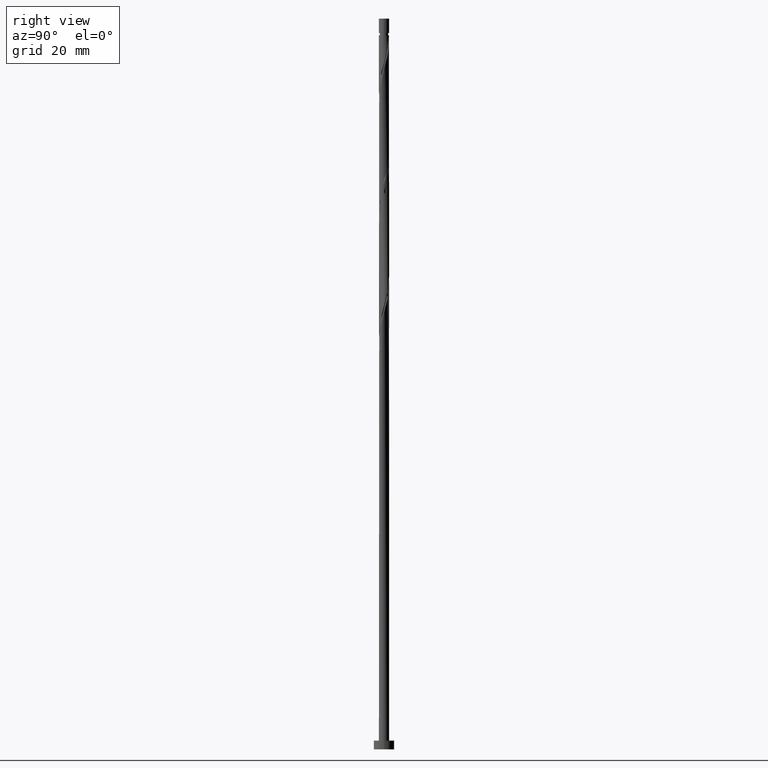
[diagram: clean part render]
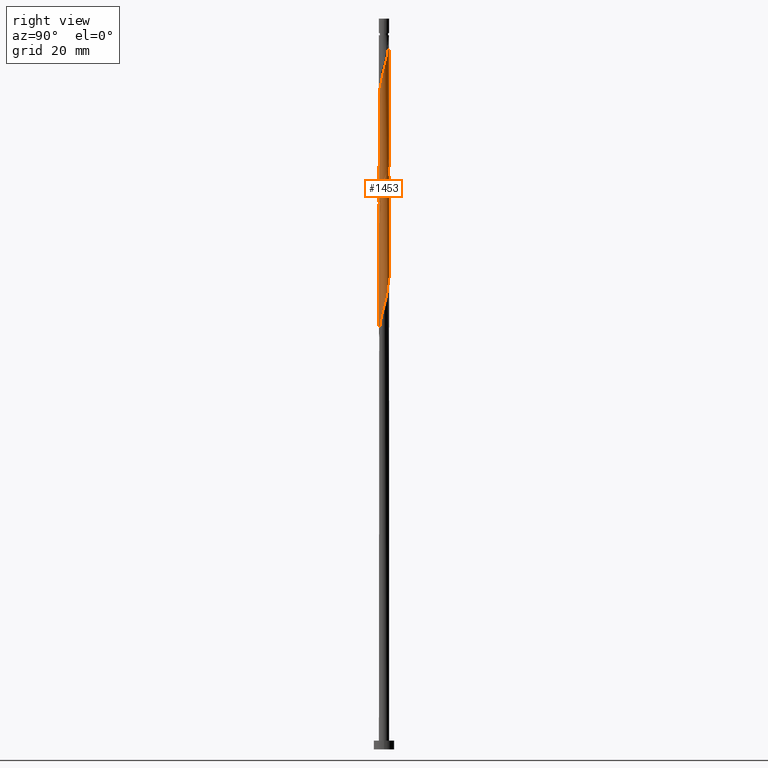
[diagram: same view with one face highlighted and labeled with its STEP entity id]
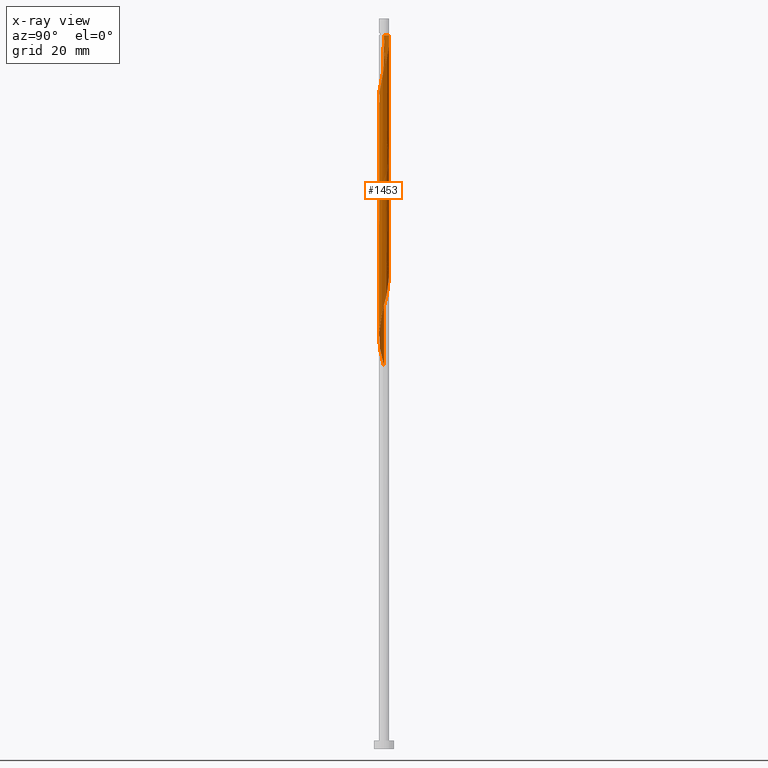
[diagram: x-ray of the same camera — body ghosted, the highlighted face saturated]
A machine part, right view. The second image highlights one B-rep face of the part: STEP entity #1453.
The next image is the same camera in x-ray: the body ghosted, the highlighted face saturated — about 0% of this face is hidden behind the body in this view.
In plain terms, the highlighted cylindrical surface (bore or boss wall) has radius 1.75 mm, axis along (-0, -0, -1).
Its self-contained STEP definition (entity closure, byte-faithful):
#9 = CARTESIAN_POINT ( 'NONE',  ( -1.692736842704839484, -0.4922330052974227543, 132.9356916761042271 ) ) ;
#24 = CARTESIAN_POINT ( 'NONE',  ( -1.749999999999999778, 0.06960297808934917674, 214.1276477645683372 ) ) ;
#27 = CARTESIAN_POINT ( 'NONE',  ( 1.749999999999999556, 1.690021054261355224E-15, 193.5584853468679398 ) ) ;
#40 = ORIENTED_EDGE ( 'NONE', *, *, #769, .F. ) ;
#56 = CARTESIAN_POINT ( 'NONE',  ( -1.366683947453748882, -1.113474893262856202, 216.2690250094376267 ) ) ;
#60 = CARTESIAN_POINT ( 'NONE',  ( -0.6926809520482244409, 1.621062752895163994, 206.6536403940529851 ) ) ;
#70 = CARTESIAN_POINT ( 'NONE',  ( -0.8765897820436293619, 1.514625483087057578, 207.4549224453350860 ) ) ;
#72 = CARTESIAN_POINT ( 'NONE',  ( 0.1400069017611417777, 1.757284671763150952, 161.7818455222580667 ) ) ;
#74 = CARTESIAN_POINT ( 'NONE',  ( -1.750000000000002220, -0.06960297808934570729, 212.0001458440505075 ) ) ;
#81 = CARTESIAN_POINT ( 'NONE',  ( 1.480063263495108306, -0.9337626765148681063, 148.1600506504632619 ) ) ;
#90 = CARTESIAN_POINT ( 'NONE',  ( -0.1400069017611421385, -1.757284671763150952, 182.6151788555914379 ) ) ;
#97 = AXIS2_PLACEMENT_3D ( 'NONE', #768, #1046, #907 ) ;
#100 = CARTESIAN_POINT ( 'NONE',  ( -0.2846071929171876680, 1.739727017636468087, 163.3844096248222115 ) ) ;
#107 = CARTESIAN_POINT ( 'NONE',  ( -1.397920935722297919, -1.052766383139818407, 135.3395378299503875 ) ) ;
#109 = DIRECTION ( 'NONE',  ( -1.000000000000000000, 0.000000000000000000, 0.000000000000000000 ) ) ;
#111 = CARTESIAN_POINT ( 'NONE',  ( -0.4886440724827061377, 1.680394885265816152, 205.8523583427709696 ) ) ;
#113 = CARTESIAN_POINT ( 'NONE',  ( -1.105356407627419824, -1.356719282724692999, 136.9421019325145323 ) ) ;
#116 = CARTESIAN_POINT ( 'NONE',  ( 1.213591279746393026, 1.260831553270904237, 237.9036403940529851 ) ) ;
#141 = ORIENTED_EDGE ( 'NONE', *, *, #904, .T. ) ;
#159 = VERTEX_POINT ( 'NONE', #1321 ) ;
#167 =( BOUNDED_CURVE ( )  B_SPLINE_CURVE ( 2, ( #27, #463, #751, #1153, #1137, #369, #892, #222, #1430, #1549, #1391, #203, #1127, #623, #1411, #90, #607, #725, #1657, #1297, #242, #1287, #1119, #1665, #598, #1645, #742, #760, #1524, #614, #335, #1540, #589, #1023, #982, #470, #1278, #359, #856, #100, #1261, #72, #1686, #1146, #1677, #992, #492, #1532, #1012, #343, #864, #480, #1003, #1400, #211, #352, #734, #1268, #81, #499, #874, #883, #1420, #231, #1556, #1570, #775, #523, #508, #1063, #1031, #1564, #113, #927, #107, #799, #401, #9, #532, #631, #1169 ),
 .UNSPECIFIED., .F., .F. ) 
 B_SPLINE_CURVE_WITH_KNOTS ( ( 3, 2, 2, 2, 2, 2, 2, 2, 2, 2, 2, 2, 2, 2, 2, 2, 2, 2, 2, 2, 2, 2, 2, 2, 2, 2, 2, 2, 2, 2, 2, 2, 2, 2, 2, 2, 2, 2, 2, 2, 3 ),
 ( 0.5545271625973831053, 0.5576923076923077094, 0.5673076923076922906, 0.5769230769230768718, 0.5865384615384615641, 0.5961538461538461453, 0.6057692307692307265, 0.6153846153846154188, 0.6250000000000000000, 0.6346153846153845812, 0.6442307692307692735, 0.6538461538461538547, 0.6634615384615384359, 0.6730769230769231282, 0.6826923076923077094, 0.6923076923076922906, 0.7019230769230768718, 0.7115384615384615641, 0.7211538461538461453, 0.7307692307692307265, 0.7403846153846154188, 0.7500000000000000000, 0.7596153846153845812, 0.7692307692307692735, 0.7788461538461538547, 0.7884615384615384359, 0.7980769230769231282, 0.8076923076923077094, 0.8173076923076922906, 0.8269230769230768718, 0.8365384615384615641, 0.8461538461538461453, 0.8557692307692307265, 0.8653846153846154188, 0.8750000000000000000, 0.8846153846153845812, 0.8942307692307692735, 0.9038461538461538547, 0.9134615384615384359, 0.9230769230769231282, 0.9295271625973833274 ),
 .UNSPECIFIED. ) 
 CURVE ( )  GEOMETRIC_REPRESENTATION_ITEM ( )  RATIONAL_B_SPLINE_CURVE ( ( 0.9061636035683047208, 0.9069090390690932590, 0.9090909090909500279, 0.9024626128164534578, 0.9090909090909500279, 0.9024626128164534578, 0.9090909090909500279, 0.9024626128164534578, 0.9090909090909500279, 0.9024626128164534578, 0.9090909090909500279, 0.9024626128164534578, 0.9090909090909500279, 0.9024626128164534578, 0.9090909090909500279, 0.9024626128164534578, 0.9090909090909500279, 0.9024626128164534578, 0.9090909090909500279, 0.9024626128164534578, 0.9090909090909500279, 0.9024626128164534578, 0.9090909090909500279, 0.9024626128164534578, 0.9090909090909500279, 0.9024626128164534578, 0.9090909090909500279, 0.9024626128164534578, 0.9090909090909500279, 0.9024626128164534578, 0.9090909090909500279, 0.9024626128164534578, 0.9090909090909500279, 0.9024626128164534578, 0.9090909090909500279, 0.9024626128164534578, 0.9090909090909500279, 0.9024626128164534578, 0.9090909090909500279, 0.9024626128164534578, 0.9090909090909500279, 0.9024626128164534578, 0.9090909090909500279, 0.9024626128164534578, 0.9090909090909500279, 0.9024626128164534578, 0.9090909090909500279, 0.9024626128164534578, 0.9090909090909500279, 0.9024626128164534578, 0.9090909090909500279, 0.9024626128164534578, 0.9090909090909500279, 0.9024626128164534578, 0.9090909090909500279, 0.9024626128164534578, 0.9090909090909500279, 0.9024626128164534578, 0.9090909090909500279, 0.9024626128164534578, 0.9090909090909500279, 0.9024626128164534578, 0.9090909090909500279, 0.9024626128164534578, 0.9090909090909500279, 0.9024626128164534578, 0.9090909090909500279, 0.9024626128164534578, 0.9090909090909500279, 0.9024626128164534578, 0.9090909090909500279, 0.9024626128164534578, 0.9090909090909500279, 0.9024626128164534578, 0.9090909090909500279, 0.9024626128164534578, 0.9090909090909500279, 0.9024626128164534578, 0.9090909090909500279, 0.9046444828383100045, 0.9061636035683048318 ) ) 
 REPRESENTATION_ITEM ( '' )  );
#181 = CARTESIAN_POINT ( 'NONE',  ( -1.749999999999999556, 8.450105271306775133E-16, 214.3918186802012542 ) ) ;
#193 = CARTESIAN_POINT ( 'NONE',  ( -1.213591279746390583, 1.260831553270903349, 209.0574865478991740 ) ) ;
#203 = CARTESIAN_POINT ( 'NONE',  ( 0.6926809520482239968, -1.621062752895164216, 185.8203070607196707 ) ) ;
#211 = CARTESIAN_POINT ( 'NONE',  ( 1.744472087975766694, -0.1389860938132612411, 151.3651788555914379 ) ) ;
#213 = CARTESIAN_POINT ( 'NONE',  ( -0.4886440724827074145, -1.680394885265818372, 220.2754352658478751 ) ) ;
#222 = CARTESIAN_POINT ( 'NONE',  ( 1.366683947453745995, -1.113474893262855314, 189.0254352658478183 ) ) ;
#231 = CARTESIAN_POINT ( 'NONE',  ( 0.6926809520482239968, -1.621062752895164216, 144.1536403940529851 ) ) ;
#234 = CARTESIAN_POINT ( 'NONE',  ( 1.660519350180560849, 0.5524269070890172051, 234.6985121889247807 ) ) ;
#236 = VECTOR ( 'NONE', #408, 1000.000000000000000 ) ;
#242 = CARTESIAN_POINT ( 'NONE',  ( -1.105356407627419824, -1.356719282724692999, 178.6087685991812180 ) ) ;
#252 = CARTESIAN_POINT ( 'NONE',  ( 1.727042448915866224, -0.2825320860410303059, 231.4933839837966048 ) ) ;
#257 = LINE ( 'NONE', #378, #1202 ) ;
#262 = CIRCLE ( 'NONE', #916, 1.749999999999982236 ) ;
#287 = VERTEX_POINT ( 'NONE', #879 ) ;
#304 = VERTEX_POINT ( 'NONE', #506 ) ;
#335 = CARTESIAN_POINT ( 'NONE',  ( -1.660519350180557518, 0.5524269070890182043, 170.5959480863607212 ) ) ;
#337 = CARTESIAN_POINT ( 'NONE',  ( -1.060498612039037170, -1.408188213278952494, 217.8715891120017147 ) ) ;
#343 = CARTESIAN_POINT ( 'NONE',  ( 1.525749917832861069, 0.8830280507364977050, 155.3715891120016863 ) ) ;
#352 = CARTESIAN_POINT ( 'NONE',  ( 1.727596120824645975, -0.3508033544111555102, 150.5638968043094224 ) ) ;
#354 = CARTESIAN_POINT ( 'NONE',  ( -1.744472087975769359, -0.1389860938132595758, 212.2626147530273784 ) ) ;
#359 = CARTESIAN_POINT ( 'NONE',  ( -0.6926809520482244409, 1.621062752895163994, 164.9869737273863279 ) ) ;
#369 = CARTESIAN_POINT ( 'NONE',  ( 1.593442579536469728, -0.7540504597668803433, 190.6279993684119347 ) ) ;
#375 = CARTESIAN_POINT ( 'NONE',  ( -1.727596120824645975, 0.3508033544111552882, 213.0638968043093655 ) ) ;
#378 = CARTESIAN_POINT ( 'NONE',  ( -1.750000000000000000, 0.000000000000000000, 250.0000000000000000 ) ) ;
#383 = CARTESIAN_POINT ( 'NONE',  ( 0.9406208616431049885, 1.490933849906247666, 200.2433839837965479 ) ) ;
#393 = CARTESIAN_POINT ( 'NONE',  ( 1.692736842704841704, -0.4922330052974249748, 230.6921019325145039 ) ) ;
#398 = ORIENTED_EDGE ( 'NONE', *, *, #1237, .F. ) ;
#401 = CARTESIAN_POINT ( 'NONE',  ( -1.609243380268850387, -0.6876305280169610068, 133.7369737273863564 ) ) ;
#408 = DIRECTION ( 'NONE',  ( -0.000000000000000000, -0.000000000000000000, -1.000000000000000000 ) ) ;
#444 = CARTESIAN_POINT ( 'NONE',  ( -1.213591279746392804, -1.260831553270904459, 217.0703070607196992 ) ) ;
#451 = VECTOR ( 'NONE', #1099, 1000.000000000000000 ) ;
#460 = CARTESIAN_POINT ( 'NONE',  ( 0.7485525829283014021, 1.581824589071546994, 201.0446660350786772 ) ) ;
#463 = CARTESIAN_POINT ( 'NONE',  ( 1.750000000000000222, -0.06960297808934233499, 193.2943144312349943 ) ) ;
#470 = CARTESIAN_POINT ( 'NONE',  ( -1.060498612039034283, 1.408188213278950718, 166.5895378299504159 ) ) ;
#472 = CARTESIAN_POINT ( 'NONE',  ( 1.525749917832862179, -0.8830280507365014797, 229.0895378299503591 ) ) ;
#480 = CARTESIAN_POINT ( 'NONE',  ( 1.692736842704839706, 0.4922330052974219217, 153.7690250094376552 ) ) ;
#492 = CARTESIAN_POINT ( 'NONE',  ( 1.105356407627420268, 1.356719282724692555, 157.7754352658479320 ) ) ;
#499 = CARTESIAN_POINT ( 'NONE',  ( 1.366683947453745995, -1.113474893262855314, 147.3587685991812464 ) ) ;
#504 = CARTESIAN_POINT ( 'NONE',  ( -1.660519350180557518, 0.5524269070890182043, 212.2626147530273215 ) ) ;
#506 = CARTESIAN_POINT ( 'NONE',  ( -0.3482456029873773340, 1.715000000000491243, 244.3138968043093939 ) ) ;
#508 = CARTESIAN_POINT ( 'NONE',  ( -0.3482456029873187697, -1.714999999999999858, 140.1472301376427367 ) ) ;
#515 = CARTESIAN_POINT ( 'NONE',  ( 0.3482456029873189363, 1.714999999999999858, 202.6472301376427936 ) ) ;
#516 = EDGE_CURVE ( 'NONE', #964, #1220, #609, .T. ) ;
#520 = CARTESIAN_POINT ( 'NONE',  ( 0.07230014557802495745, 1.748505844699812517, 242.7113327017453059 ) ) ;
#523 = CARTESIAN_POINT ( 'NONE',  ( -0.1400069017611421385, -1.757284671763150952, 140.9485121889247523 ) ) ;
#532 = CARTESIAN_POINT ( 'NONE',  ( -1.727042448915863782, -0.2825320860410289736, 132.1344096248222399 ) ) ;
#576 = CARTESIAN_POINT ( 'NONE',  ( -1.744472087975766694, 0.1389860938132602142, 213.8651788555914663 ) ) ;
#580 = CARTESIAN_POINT ( 'NONE',  ( -1.727596120824647974, -0.3508033544111553992, 213.0638968043093655 ) ) ;
#587 = ORIENTED_EDGE ( 'NONE', *, *, #1215, .F. ) ;
#589 = CARTESIAN_POINT ( 'NONE',  ( -1.480063263495108306, 0.9337626765148677732, 168.9933839837966332 ) ) ;
#591 = CARTESIAN_POINT ( 'NONE',  ( 1.270091953611735880, -1.222504715543140774, 227.4869737273862995 ) ) ;
#598 = CARTESIAN_POINT ( 'NONE',  ( -1.609243380268850387, -0.6876305280169610068, 175.4036403940529851 ) ) ;
#601 = CARTESIAN_POINT ( 'NONE',  ( 0.5564843042134953732, -1.672715328236850096, 224.2818455222579814 ) ) ;
#607 = CARTESIAN_POINT ( 'NONE',  ( -0.3482456029873187697, -1.714999999999999858, 181.8138968043093655 ) ) ;
#609 = LINE ( 'NONE', #1542, #451 ) ;
#614 = CARTESIAN_POINT ( 'NONE',  ( -1.727596120824645975, 0.3508033544111552882, 171.3972301376426799 ) ) ;
#623 = CARTESIAN_POINT ( 'NONE',  ( 0.2846071929171870019, -1.739727017636468087, 184.2177429581555828 ) ) ;
#631 = CARTESIAN_POINT ( 'NONE',  ( -1.749999999999999556, -0.1421987674398279000, 131.5981860842162234 ) ) ;
#633 = CARTESIAN_POINT ( 'NONE',  ( 1.060498612039037392, 1.408188213278951606, 238.7049224453349723 ) ) ;
#646 = LINE ( 'NONE', #1328, #236 ) ;
#650 = CARTESIAN_POINT ( 'NONE',  ( 1.480063263495110526, 0.9337626765148685504, 236.3010762914889256 ) ) ;
#715 = CARTESIAN_POINT ( 'NONE',  ( -1.593442579536469728, 0.7540504597668805653, 211.4613327017453059 ) ) ;
#725 = CARTESIAN_POINT ( 'NONE',  ( -0.5564843042134960394, -1.672715328236847210, 181.0126147530273215 ) ) ;
#727 = CARTESIAN_POINT ( 'NONE',  ( -1.660519350180560405, -0.5524269070890180933, 213.8651788555914663 ) ) ;
#734 = CARTESIAN_POINT ( 'NONE',  ( 1.660519350180557518, -0.5524269070890189814, 149.7626147530273499 ) ) ;
#736 = CARTESIAN_POINT ( 'NONE',  ( -0.2846071929171888337, -1.739727017636470974, 221.0767173171299760 ) ) ;
#742 = CARTESIAN_POINT ( 'NONE',  ( -1.727042448915863782, -0.2825320860410289736, 173.8010762914888971 ) ) ;
#751 = CARTESIAN_POINT ( 'NONE',  ( 1.744472087975766694, -0.1389860938132612411, 193.0318455222581235 ) ) ;
#754 = CARTESIAN_POINT ( 'NONE',  ( 0.8765897820436315824, 1.514625483087058688, 239.5062044966170731 ) ) ;
#760 = CARTESIAN_POINT ( 'NONE',  ( -1.761348055126887857, -0.07283116678463535942, 172.9997942402068247 ) ) ;
#764 = CARTESIAN_POINT ( 'NONE',  ( -0.07230014557802298680, 1.748505844699809852, 204.2497942402068247 ) ) ;
#768 = CARTESIAN_POINT ( 'NONE',  ( 0.000000000000000000, 0.000000000000000000, 250.0000000000000000 ) ) ;
#769 = EDGE_CURVE ( 'NONE', #159, #304, #1408, .T. ) ;
#775 = CARTESIAN_POINT ( 'NONE',  ( 0.07230014557802240394, -1.748505844699809852, 141.7497942402068531 ) ) ;
#779 = DIRECTION ( 'NONE',  ( -0.000000000000000000, -0.000000000000000000, -1.000000000000000000 ) ) ;
#791 = CARTESIAN_POINT ( 'NONE',  ( 1.749999999999999334, 1.690021054261355224E-15, 193.5584853468679398 ) ) ;
#799 = CARTESIAN_POINT ( 'NONE',  ( -1.525749917832860625, -0.8830280507364987042, 134.5382557786683719 ) ) ;
#849 = CARTESIAN_POINT ( 'NONE',  ( 0.3482456029873186587, -1.715000000000001856, 223.4805634709760511 ) ) ;
#856 = CARTESIAN_POINT ( 'NONE',  ( -0.4886440724827061377, 1.680394885265816152, 164.1856916761042839 ) ) ;
#864 = CARTESIAN_POINT ( 'NONE',  ( 1.609243380268850387, 0.6876305280169606737, 154.5703070607196423 ) ) ;
#874 = CARTESIAN_POINT ( 'NONE',  ( 1.213591279746390583, -1.260831553270903349, 146.5574865478991740 ) ) ;
#879 = CARTESIAN_POINT ( 'NONE',  ( -1.749999999999999556, -2.407906103859098896E-15, 131.0584853468679398 ) ) ;
#883 = CARTESIAN_POINT ( 'NONE',  ( 1.060498612039033839, -1.408188213278950940, 145.7562044966171015 ) ) ;
#888 = CARTESIAN_POINT ( 'NONE',  ( 1.525749917832861069, 0.8830280507364977050, 197.0382557786683435 ) ) ;
#892 = CARTESIAN_POINT ( 'NONE',  ( 1.480063263495108306, -0.9337626765148681063, 189.8267173171298907 ) ) ;
#896 = CARTESIAN_POINT ( 'NONE',  ( 0.5564843042134963724, 1.672715328236847210, 201.8459480863606643 ) ) ;
#904 = EDGE_CURVE ( 'NONE', #1508, #304, #262, .T. ) ;
#907 = DIRECTION ( 'NONE',  ( -1.000000000000000000, 0.000000000000000000, 0.000000000000000000 ) ) ;
#915 = CARTESIAN_POINT ( 'NONE',  ( 1.761348055126890078, -0.07283116678463578963, 232.2946660350786203 ) ) ;
#916 = AXIS2_PLACEMENT_3D ( 'NONE', #1299, #779, #109 ) ;
#927 = CARTESIAN_POINT ( 'NONE',  ( -1.270091953611734326, -1.222504715543138110, 136.1408198812324883 ) ) ;
#933 = ORIENTED_EDGE ( 'NONE', *, *, #516, .F. ) ;
#961 = CARTESIAN_POINT ( 'NONE',  ( -1.593442579536471726, -0.7540504597668812314, 214.6664609068734819 ) ) ;
#964 = VERTEX_POINT ( 'NONE', #1515 ) ;
#974 = CARTESIAN_POINT ( 'NONE',  ( 0.1400069017611409727, -1.757284671763154282, 222.6792814196940071 ) ) ;
#980 = CARTESIAN_POINT ( 'NONE',  ( 1.609243380268850387, 0.6876305280169606737, 196.2369737273863564 ) ) ;
#982 = CARTESIAN_POINT ( 'NONE',  ( -1.213591279746390583, 1.260831553270903349, 167.3908198812324883 ) ) ;
#992 = CARTESIAN_POINT ( 'NONE',  ( 0.9406208616431049885, 1.490933849906247666, 158.5767173171298623 ) ) ;
#994 = CARTESIAN_POINT ( 'NONE',  ( -0.07230014557802395825, -1.748505844699812295, 221.8779993684119631 ) ) ;
#1003 = CARTESIAN_POINT ( 'NONE',  ( 1.727042448915863782, 0.2825320860410291957, 152.9677429581555828 ) ) ;
#1006 = CARTESIAN_POINT ( 'NONE',  ( -1.750000000000002665, -2.019051701993640766E-16, 211.7359749284175336 ) ) ;
#1012 = CARTESIAN_POINT ( 'NONE',  ( 1.397920935722297919, 1.052766383139818185, 156.1728711632838156 ) ) ;
#1023 = CARTESIAN_POINT ( 'NONE',  ( -1.366683947453746883, 1.113474893262854870, 168.1921019325145608 ) ) ;
#1027 = CARTESIAN_POINT ( 'NONE',  ( -1.060498612039034283, 1.408188213278950718, 208.2562044966170731 ) ) ;
#1031 = CARTESIAN_POINT ( 'NONE',  ( -0.7485525829283005139, -1.581824589071546994, 138.5446660350786772 ) ) ;
#1038 = CARTESIAN_POINT ( 'NONE',  ( -1.480063263495108306, 0.9337626765148677732, 210.6600506504632619 ) ) ;
#1040 = CYLINDRICAL_SURFACE ( 'NONE', #97, 1.750000000000000000 ) ;
#1046 = DIRECTION ( 'NONE',  ( -0.000000000000000000, -0.000000000000000000, -1.000000000000000000 ) ) ;
#1063 = CARTESIAN_POINT ( 'NONE',  ( -0.5564843042134960394, -1.672715328236847210, 139.3459480863606643 ) ) ;
#1099 = DIRECTION ( 'NONE',  ( -0.000000000000000000, -0.000000000000000000, -1.000000000000000000 ) ) ;
#1119 = CARTESIAN_POINT ( 'NONE',  ( -1.397920935722297919, -1.052766383139818407, 177.0062044966170447 ) ) ;
#1127 = CARTESIAN_POINT ( 'NONE',  ( 0.4886440724827061377, -1.680394885265816152, 185.0190250094376267 ) ) ;
#1129 = CARTESIAN_POINT ( 'NONE',  ( 1.105356407627421156, -1.356719282724694997, 226.6856916761042555 ) ) ;
#1137 = CARTESIAN_POINT ( 'NONE',  ( 1.660519350180557518, -0.5524269070890189814, 191.4292814196940071 ) ) ;
#1146 = CARTESIAN_POINT ( 'NONE',  ( 0.5564843042134963724, 1.672715328236847210, 160.1792814196940071 ) ) ;
#1148 = CARTESIAN_POINT ( 'NONE',  ( -0.1400069017611456634, 1.757284671763154282, 243.5126147530272931 ) ) ;
#1153 = CARTESIAN_POINT ( 'NONE',  ( 1.727596120824645975, -0.3508033544111555102, 192.2305634709759659 ) ) ;
#1156 = CARTESIAN_POINT ( 'NONE',  ( 1.593442579536471948, 0.7540504597668808984, 235.4997942402067963 ) ) ;
#1164 = CARTESIAN_POINT ( 'NONE',  ( -0.3482456029873773340, 1.715000000000491243, 244.3138968043093939 ) ) ;
#1166 = CARTESIAN_POINT ( 'NONE',  ( -0.2846071929171876680, 1.739727017636468087, 205.0510762914888971 ) ) ;
#1169 = CARTESIAN_POINT ( 'NONE',  ( -1.749999999999999556, -2.407906103859098896E-15, 131.0584853468679398 ) ) ;
#1188 = CARTESIAN_POINT ( 'NONE',  ( -1.749999999999982236, 0.000000000000000000, 244.3138968043093939 ) ) ;
#1202 = VECTOR ( 'NONE', #1446, 1000.000000000000000 ) ;
#1215 = EDGE_CURVE ( 'NONE', #1220, #287, #167, .T. ) ;
#1220 = VERTEX_POINT ( 'NONE', #791 ) ;
#1223 = CARTESIAN_POINT ( 'NONE',  ( -1.749999999999999556, 8.450105271306774147E-16, 214.3918186802012542 ) ) ;
#1237 = EDGE_CURVE ( 'NONE', #1508, #1621, #646, .T. ) ;
#1250 = CARTESIAN_POINT ( 'NONE',  ( -1.366683947453746883, 1.113474893262854870, 209.8587685991811895 ) ) ;
#1254 = CARTESIAN_POINT ( 'NONE',  ( 0.9406208616431048775, -1.490933849906250108, 225.8844096248222115 ) ) ;
#1261 = CARTESIAN_POINT ( 'NONE',  ( -0.07230014557802298680, 1.748505844699809852, 162.5831275735401675 ) ) ;
#1263 = CARTESIAN_POINT ( 'NONE',  ( -0.6926809520482259952, -1.621062752895165771, 219.4741532145657459 ) ) ;
#1268 = CARTESIAN_POINT ( 'NONE',  ( 1.593442579536469728, -0.7540504597668803433, 148.9613327017452775 ) ) ;
#1270 = EDGE_CURVE ( 'NONE', #159, #287, #257, .T. ) ;
#1276 = ORIENTED_EDGE ( 'NONE', *, *, #1270, .T. ) ;
#1278 = CARTESIAN_POINT ( 'NONE',  ( -0.8765897820436293619, 1.514625483087057578, 165.7882557786683719 ) ) ;
#1287 = CARTESIAN_POINT ( 'NONE',  ( -1.270091953611734326, -1.222504715543138110, 177.8074865478990887 ) ) ;
#1292 = CARTESIAN_POINT ( 'NONE',  ( 1.105356407627420268, 1.356719282724692555, 199.4421019325145323 ) ) ;
#1297 = CARTESIAN_POINT ( 'NONE',  ( -0.9406208616431047664, -1.490933849906247666, 179.4100506504632904 ) ) ;
#1299 = CARTESIAN_POINT ( 'NONE',  ( 0.000000000000000000, 0.000000000000000000, 244.3138968043093939 ) ) ;
#1301 = CARTESIAN_POINT ( 'NONE',  ( 1.749999999999999556, 1.690021054261355224E-15, 193.5584853468679398 ) ) ;
#1321 = CARTESIAN_POINT ( 'NONE',  ( -1.750000000000002665, -2.019051701993640766E-16, 211.7359749284175336 ) ) ;
#1322 = CARTESIAN_POINT ( 'NONE',  ( 0.4886440724827083026, 1.680394885265818372, 241.1087685991812464 ) ) ;
#1328 = CARTESIAN_POINT ( 'NONE',  ( -1.750000000000000000, 0.000000000000000000, 250.0000000000000000 ) ) ;
#1383 = CARTESIAN_POINT ( 'NONE',  ( 0.7485525829283004029, -1.581824589071549880, 225.0831275735401675 ) ) ;
#1388 = ORIENTED_EDGE ( 'NONE', *, *, #516, .T. ) ;
#1389 = CARTESIAN_POINT ( 'NONE',  ( 1.692736842704839706, 0.4922330052974219217, 195.4356916761042555 ) ) ;
#1391 = CARTESIAN_POINT ( 'NONE',  ( 0.8765897820436290289, -1.514625483087057578, 186.6215891120017147 ) ) ;
#1400 = CARTESIAN_POINT ( 'NONE',  ( 1.761348055126887413, 0.07283116678463467941, 152.1664609068735103 ) ) ;
#1408 =( BOUNDED_CURVE ( )  B_SPLINE_CURVE ( 2, ( #1006, #74, #354, #580, #727, #961, #1629, #56, #444, #337, #1638, #1263, #213, #736, #994, #974, #849, #601, #1383, #1254, #1129, #591, #1659, #472, #1534, #393, #252, #915, #1572, #1422, #234, #1156, #650, #1442, #116, #633, #754, #1689, #1322, #1457, #520, #1148, #1164 ),
 .UNSPECIFIED., .F., .T. ) 
 B_SPLINE_CURVE_WITH_KNOTS ( ( 3, 2, 2, 2, 2, 2, 2, 2, 2, 2, 2, 2, 2, 2, 2, 2, 2, 2, 2, 2, 2, 3 ),
 ( 0.5545271625973833274, 0.5576923076923077094, 0.5673076923076922906, 0.5769230769230768718, 0.5865384615384615641, 0.5961538461538461453, 0.6057692307692309486, 0.6153846153846155298, 0.6250000000000001110, 0.6346153846153846922, 0.6442307692307692735, 0.6538461538461539657, 0.6634615384615385469, 0.6730769230769232392, 0.6826923076923078204, 0.6923076923076925127, 0.7019230769230770939, 0.7115384615384617861, 0.7211538461538463674, 0.7307692307692310596, 0.7403846153846156408, 0.7500000000000002220 ),
 .UNSPECIFIED. ) 
 CURVE ( )  GEOMETRIC_REPRESENTATION_ITEM ( )  RATIONAL_B_SPLINE_CURVE ( ( 0.9061636035683107160, 0.9069090390690994763, 0.9090909090909560231, 0.9024626128164594530, 0.9090909090909560231, 0.9024626128164594530, 0.9090909090909560231, 0.9024626128164594530, 0.9090909090909560231, 0.9024626128164594530, 0.9090909090909560231, 0.9024626128164594530, 0.9090909090909560231, 0.9024626128164594530, 0.9090909090909560231, 0.9024626128164594530, 0.9090909090909560231, 0.9024626128164594530, 0.9090909090909560231, 0.9024626128164594530, 0.9090909090909560231, 0.9024626128164594530, 0.9090909090909560231, 0.9024626128164594530, 0.9090909090909560231, 0.9024626128164594530, 0.9090909090909560231, 0.9024626128164594530, 0.9090909090909560231, 0.9024626128164594530, 0.9090909090909560231, 0.9024626128164594530, 0.9090909090909560231, 0.9024626128164594530, 0.9090909090909560231, 0.9024626128164594530, 0.9090909090909560231, 0.9024626128164594530, 0.9090909090909560231, 0.9024626128164594530, 0.9090909090909560231, 0.9024626128164593419, 0.9090909090909561341 ) ) 
 REPRESENTATION_ITEM ( '' )  );
#1411 = CARTESIAN_POINT ( 'NONE',  ( 0.07230014557802240394, -1.748505844699809852, 183.4164609068735388 ) ) ;
#1420 = CARTESIAN_POINT ( 'NONE',  ( 0.8765897820436290289, -1.514625483087057578, 144.9549224453350291 ) ) ;
#1422 = CARTESIAN_POINT ( 'NONE',  ( 1.727596120824647974, 0.3508033544111552327, 233.8972301376427367 ) ) ;
#1430 = CARTESIAN_POINT ( 'NONE',  ( 1.213591279746390583, -1.260831553270903349, 188.2241532145658311 ) ) ;
#1435 = CARTESIAN_POINT ( 'NONE',  ( 1.397920935722297919, 1.052766383139818185, 197.8395378299504443 ) ) ;
#1442 = CARTESIAN_POINT ( 'NONE',  ( 1.366683947453749326, 1.113474893262855092, 237.1023583427709411 ) ) ;
#1446 = DIRECTION ( 'NONE',  ( -0.000000000000000000, -0.000000000000000000, -1.000000000000000000 ) ) ;
#1453 = ADVANCED_FACE ( 'NONE', ( #1712 ), #1040, .T. ) ;
#1457 = CARTESIAN_POINT ( 'NONE',  ( 0.2846071929171890003, 1.739727017636470974, 241.9100506504632619 ) ) ;
#1497 = ORIENTED_EDGE ( 'NONE', *, *, #1709, .F. ) ;
#1508 = VERTEX_POINT ( 'NONE', #1188 ) ;
#1515 = CARTESIAN_POINT ( 'NONE',  ( 1.750000000000000000, 2.143131898507868297E-16, 244.3138968043093939 ) ) ;
#1524 = CARTESIAN_POINT ( 'NONE',  ( -1.744472087975766694, 0.1389860938132602142, 172.1985121889248092 ) ) ;
#1532 = CARTESIAN_POINT ( 'NONE',  ( 1.270091953611734548, 1.222504715543138110, 156.9741532145657743 ) ) ;
#1534 = CARTESIAN_POINT ( 'NONE',  ( 1.609243380268852386, -0.6876305280169626721, 229.8908198812324883 ) ) ;
#1540 = CARTESIAN_POINT ( 'NONE',  ( -1.593442579536469728, 0.7540504597668805653, 169.7946660350786203 ) ) ;
#1542 = CARTESIAN_POINT ( 'NONE',  ( 1.750000000000000000, 2.143131898507868297E-16, 250.0000000000000000 ) ) ;
#1549 = CARTESIAN_POINT ( 'NONE',  ( 1.060498612039033839, -1.408188213278950940, 187.4228711632837019 ) ) ;
#1556 = CARTESIAN_POINT ( 'NONE',  ( 0.4886440724827061377, -1.680394885265816152, 143.3523583427709696 ) ) ;
#1564 = CARTESIAN_POINT ( 'NONE',  ( -0.9406208616431047664, -1.490933849906247666, 137.7433839837966048 ) ) ;
#1570 = CARTESIAN_POINT ( 'NONE',  ( 0.2846071929171870019, -1.739727017636468087, 142.5510762914888687 ) ) ;
#1572 = CARTESIAN_POINT ( 'NONE',  ( 1.744472087975769581, 0.1389860938132589652, 233.0959480863606927 ) ) ;
#1574 = CARTESIAN_POINT ( 'NONE',  ( 1.727042448915863782, 0.2825320860410291957, 194.6344096248222399 ) ) ;
#1576 = EDGE_LOOP ( 'NONE', ( #398, #141, #40, #1276, #587, #933, #1388, #1497 ) ) ;
#1582 =( BOUNDED_CURVE ( )  B_SPLINE_CURVE ( 2, ( #181, #24, #576, #375, #504, #715, #1038, #1250, #193, #1027, #70, #60, #111, #1166, #764, #1699, #515, #896, #460, #383, #1292, #1691, #1435, #888, #980, #1389, #1574, #1710, #1301 ),
 .UNSPECIFIED., .F., .F. ) 
 B_SPLINE_CURVE_WITH_KNOTS ( ( 3, 2, 2, 2, 2, 2, 2, 2, 2, 2, 2, 2, 2, 2, 3 ),
 ( 0.4295271625973834384, 0.4326923076923077094, 0.4423076923076922906, 0.4519230769230769273, 0.4615384615384615641, 0.4711538461538461453, 0.4807692307692307820, 0.4903846153846153633, 0.5000000000000000000, 0.5096153846153845812, 0.5192307692307692735, 0.5288461538461538547, 0.5384615384615384359, 0.5480769230769231282, 0.5545271625973831053 ),
 .UNSPECIFIED. ) 
 CURVE ( )  GEOMETRIC_REPRESENTATION_ITEM ( )  RATIONAL_B_SPLINE_CURVE ( ( 0.9061636035683049428, 0.9069090390690934811, 0.9090909090909500279, 0.9024626128164534578, 0.9090909090909500279, 0.9024626128164534578, 0.9090909090909500279, 0.9024626128164534578, 0.9090909090909500279, 0.9024626128164534578, 0.9090909090909500279, 0.9024626128164534578, 0.9090909090909500279, 0.9024626128164534578, 0.9090909090909500279, 0.9024626128164534578, 0.9090909090909500279, 0.9024626128164534578, 0.9090909090909500279, 0.9024626128164534578, 0.9090909090909500279, 0.9024626128164534578, 0.9090909090909500279, 0.9024626128164534578, 0.9090909090909500279, 0.9024626128164534578, 0.9090909090909500279, 0.9046444828383102266, 0.9061636035683047208 ) ) 
 REPRESENTATION_ITEM ( '' )  );
#1621 = VERTEX_POINT ( 'NONE', #1223 ) ;
#1629 = CARTESIAN_POINT ( 'NONE',  ( -1.480063263495110526, -0.9337626765148684393, 215.4677429581555259 ) ) ;
#1638 = CARTESIAN_POINT ( 'NONE',  ( -0.8765897820436314714, -1.514625483087058910, 218.6728711632837587 ) ) ;
#1645 = CARTESIAN_POINT ( 'NONE',  ( -1.692736842704839484, -0.4922330052974227543, 174.6023583427709127 ) ) ;
#1657 = CARTESIAN_POINT ( 'NONE',  ( -0.7485525829283005139, -1.581824589071546994, 180.2113327017453059 ) ) ;
#1659 = CARTESIAN_POINT ( 'NONE',  ( 1.397920935722299252, -1.052766383139821516, 228.2882557786683719 ) ) ;
#1665 = CARTESIAN_POINT ( 'NONE',  ( -1.525749917832860625, -0.8830280507364987042, 176.2049224453350007 ) ) ;
#1677 = CARTESIAN_POINT ( 'NONE',  ( 0.7485525829283014021, 1.581824589071546994, 159.3779993684119347 ) ) ;
#1686 = CARTESIAN_POINT ( 'NONE',  ( 0.3482456029873189363, 1.714999999999999858, 160.9805634709760795 ) ) ;
#1689 = CARTESIAN_POINT ( 'NONE',  ( 0.6926809520482259952, 1.621062752895165771, 240.3074865478990603 ) ) ;
#1691 = CARTESIAN_POINT ( 'NONE',  ( 1.270091953611734548, 1.222504715543138110, 198.6408198812324031 ) ) ;
#1699 = CARTESIAN_POINT ( 'NONE',  ( 0.1400069017611417777, 1.757284671763150952, 203.4485121889247523 ) ) ;
#1709 = EDGE_CURVE ( 'NONE', #1621, #1220, #1582, .T. ) ;
#1710 = CARTESIAN_POINT ( 'NONE',  ( 1.749999999999998668, 0.1421987674398323687, 194.0981860842161666 ) ) ;
#1712 = FACE_OUTER_BOUND ( 'NONE', #1576, .T. ) ;